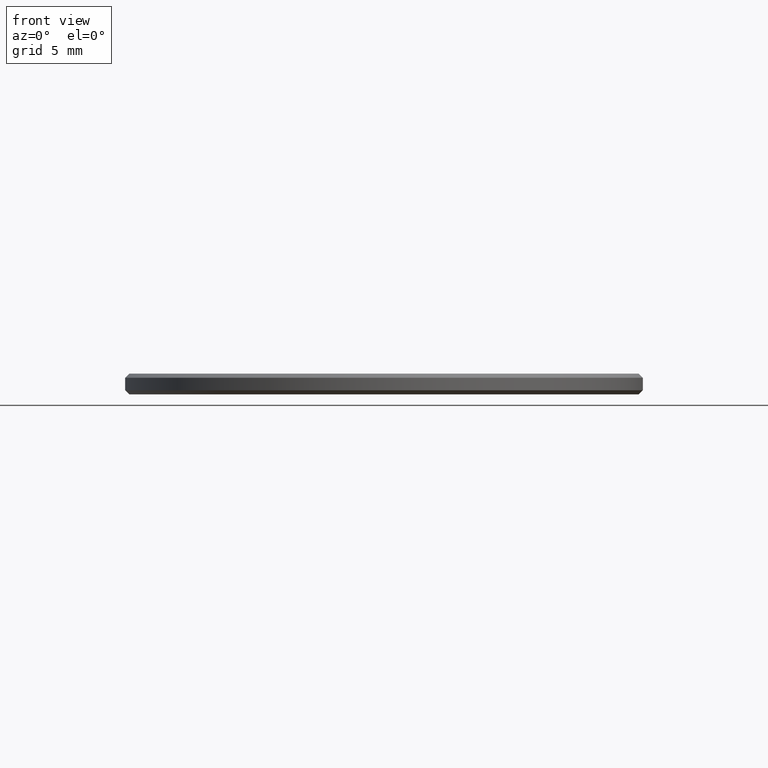
[diagram: clean part render]
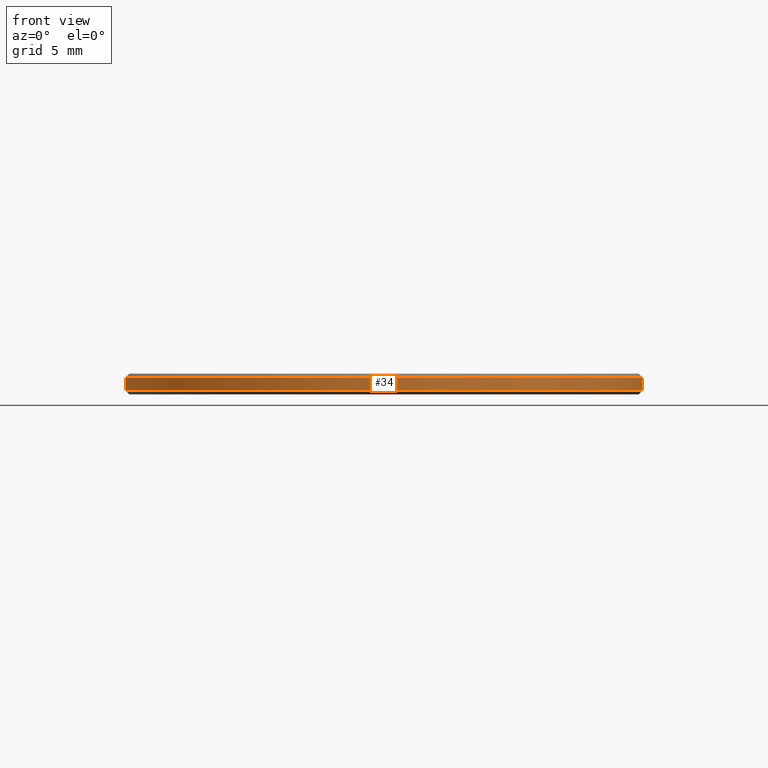
[diagram: same view with one face highlighted and labeled with its STEP entity id]
A machine part, front view. The second image highlights one B-rep face of the part: STEP entity #34.
In plain terms, the highlighted cylindrical surface (partial cylindrical patch) has radius 12.5 mm, axis along (-0, -0, -1).
Its self-contained STEP definition (entity closure, byte-faithful):
#2 = VERTEX_POINT ( 'NONE', #87 ) ;
#5 = CARTESIAN_POINT ( 'NONE',  ( -12.50000000000000000, 0.000000000000000000, 0.1999999999999987899 ) ) ;
#12 = VECTOR ( 'NONE', #52, 1000.000000000000000 ) ;
#17 = LINE ( 'NONE', #90, #12 ) ;
#20 = AXIS2_PLACEMENT_3D ( 'NONE', #176, #83, #157 ) ;
#27 = VERTEX_POINT ( 'NONE', #216 ) ;
#34 = ADVANCED_FACE ( 'NONE', ( #84 ), #237, .T. ) ;
#35 = DIRECTION ( 'NONE',  ( -1.000000000000000000, 0.000000000000000000, 0.000000000000000000 ) ) ;
#43 = EDGE_LOOP ( 'NONE', ( #152, #225, #135, #133 ) ) ;
#52 = DIRECTION ( 'NONE',  ( -0.000000000000000000, -0.000000000000000000, -1.000000000000000000 ) ) ;
#59 = VECTOR ( 'NONE', #77, 1000.000000000000000 ) ;
#69 = AXIS2_PLACEMENT_3D ( 'NONE', #136, #177, #35 ) ;
#77 = DIRECTION ( 'NONE',  ( -0.000000000000000000, -0.000000000000000000, -1.000000000000000000 ) ) ;
#83 = DIRECTION ( 'NONE',  ( -0.000000000000000000, -0.000000000000000000, 1.000000000000000000 ) ) ;
#84 = FACE_OUTER_BOUND ( 'NONE', #43, .T. ) ;
#87 = CARTESIAN_POINT ( 'NONE',  ( 12.50000000000000000, 1.530808498934191521E-15, 0.8000000000000029310 ) ) ;
#89 = EDGE_CURVE ( 'NONE', #209, #114, #125, .T. ) ;
#90 = CARTESIAN_POINT ( 'NONE',  ( -12.50000000000000000, 0.000000000000000000, 1.000000000000000000 ) ) ;
#95 = LINE ( 'NONE', #101, #59 ) ;
#101 = CARTESIAN_POINT ( 'NONE',  ( 12.50000000000000000, 1.530808498934191521E-15, 1.000000000000000000 ) ) ;
#104 = EDGE_CURVE ( 'NONE', #2, #27, #107, .T. ) ;
#107 = CIRCLE ( 'NONE', #122, 12.50000000000000000 ) ;
#111 = DIRECTION ( 'NONE',  ( 1.000000000000000000, 0.000000000000000000, 0.000000000000000000 ) ) ;
#114 = VERTEX_POINT ( 'NONE', #219 ) ;
#122 = AXIS2_PLACEMENT_3D ( 'NONE', #233, #182, #111 ) ;
#125 = CIRCLE ( 'NONE', #20, 12.50000000000000000 ) ;
#127 = EDGE_CURVE ( 'NONE', #27, #209, #17, .T. ) ;
#133 = ORIENTED_EDGE ( 'NONE', *, *, #89, .T. ) ;
#135 = ORIENTED_EDGE ( 'NONE', *, *, #127, .T. ) ;
#136 = CARTESIAN_POINT ( 'NONE',  ( 0.000000000000000000, 0.000000000000000000, 1.000000000000000000 ) ) ;
#152 = ORIENTED_EDGE ( 'NONE', *, *, #204, .F. ) ;
#157 = DIRECTION ( 'NONE',  ( 1.000000000000000000, 0.000000000000000000, 0.000000000000000000 ) ) ;
#176 = CARTESIAN_POINT ( 'NONE',  ( 0.000000000000000000, 0.000000000000000000, 0.1999999999999987899 ) ) ;
#177 = DIRECTION ( 'NONE',  ( -0.000000000000000000, -0.000000000000000000, -1.000000000000000000 ) ) ;
#182 = DIRECTION ( 'NONE',  ( 0.000000000000000000, 0.000000000000000000, -1.000000000000000000 ) ) ;
#204 = EDGE_CURVE ( 'NONE', #2, #114, #95, .T. ) ;
#209 = VERTEX_POINT ( 'NONE', #5 ) ;
#216 = CARTESIAN_POINT ( 'NONE',  ( -12.50000000000000000, 0.000000000000000000, 0.8000000000000029310 ) ) ;
#219 = CARTESIAN_POINT ( 'NONE',  ( 12.50000000000000000, 1.530808498934191521E-15, 0.1999999999999987899 ) ) ;
#225 = ORIENTED_EDGE ( 'NONE', *, *, #104, .T. ) ;
#233 = CARTESIAN_POINT ( 'NONE',  ( 0.000000000000000000, 0.000000000000000000, 0.8000000000000029310 ) ) ;
#237 = CYLINDRICAL_SURFACE ( 'NONE', #69, 12.50000000000000000 ) ;